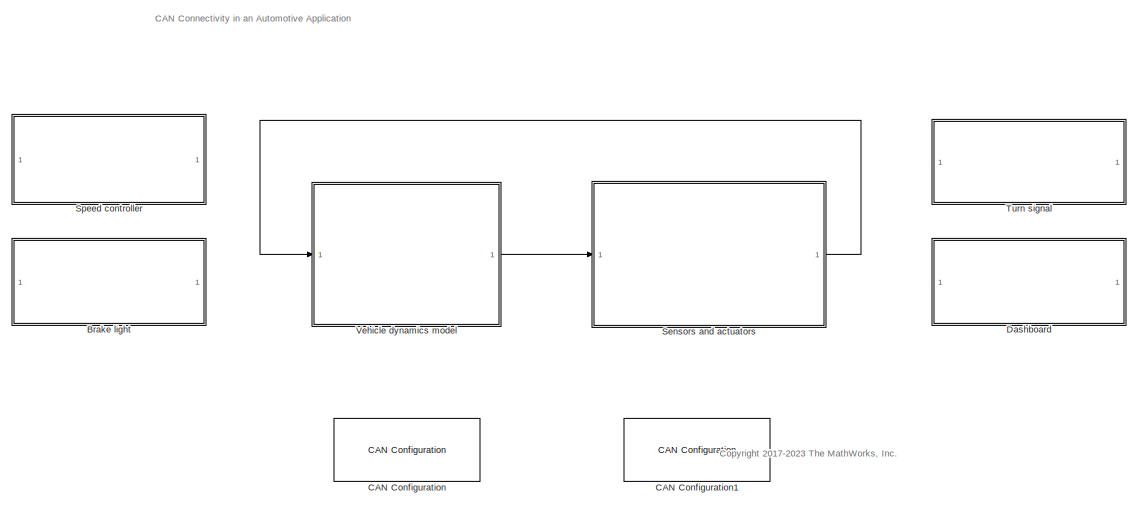
[diagram: root canvas - part 1/2, full width, top band]
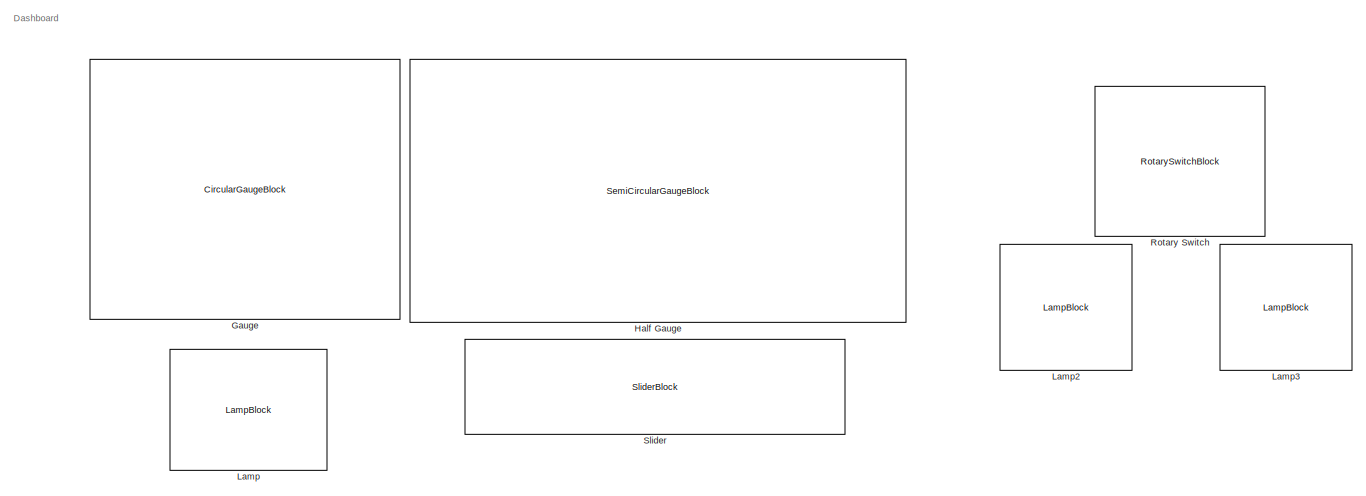
[diagram: root canvas - part 2/2, full width, bottom band]
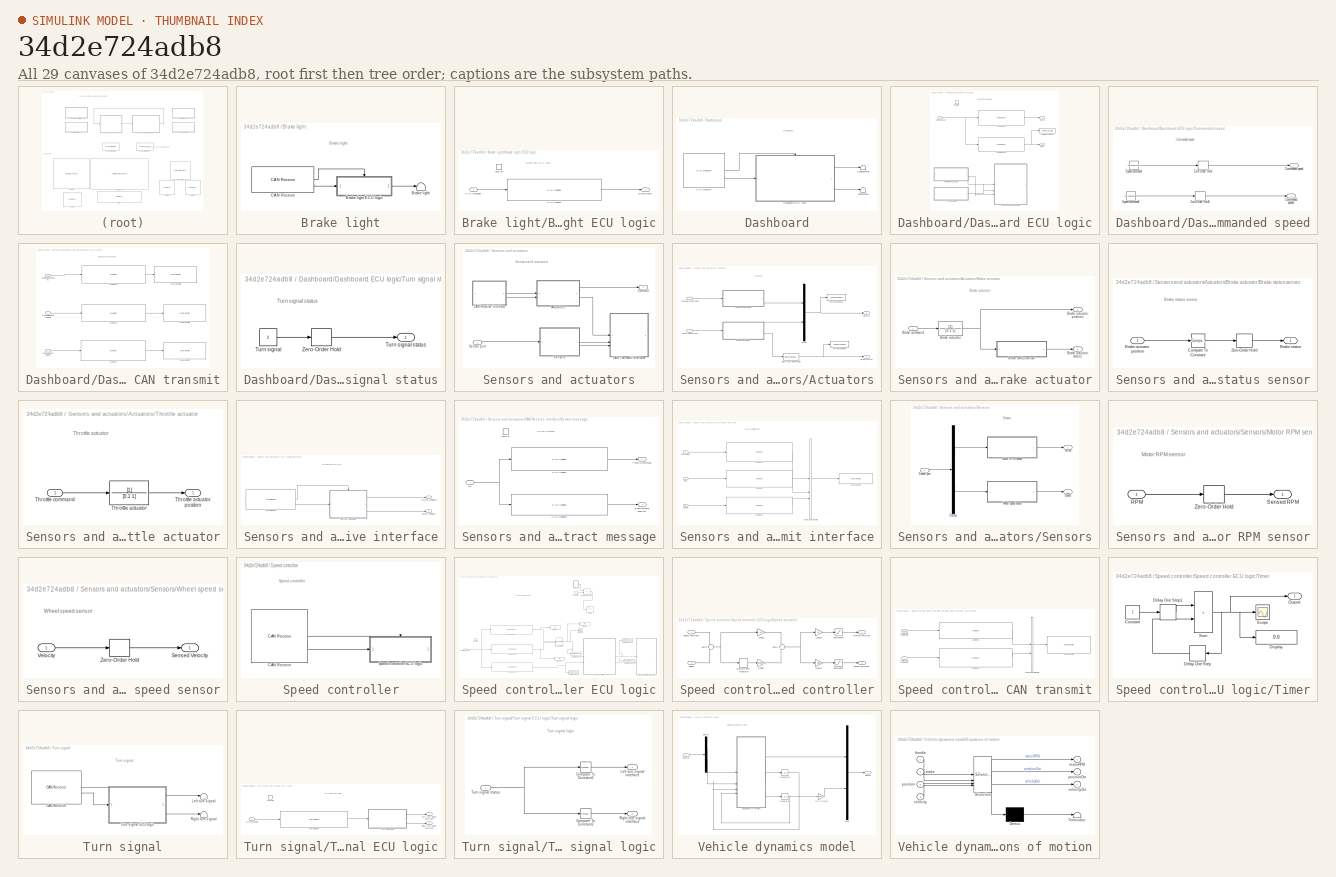
[diagram: thumbnail index - all 29 canvases of the model, root first then tree order]
MODEL slx_34d2e724adb8
KIND model
CONFIG AbsTol = auto
CONFIG EnableMultiTasking = off
CONFIG FixedStep = auto
CONFIG MaxStep = auto
CONFIG MinStep = auto
CONFIG RelTol = 1e-3
CONFIG SampleTimeConstraint = Unconstrained
CONFIG SolverName = VariableStepAuto
CONFIG StartTime = 0.0
CONFIG StopTime = inf
BLOCK [SubSystem] Brake light
BLOCK [Terminator] Brake light/Brake light
BLOCK [SubSystem] Brake light/Brake light ECU logic
  TreatAsAtomicUnit = on
BLOCK [Outport] Brake light/Brake light ECU logic/Brake status
  VectorParamsAs1DForOutWhenUnconnected = off
BLOCK [Reference] Brake light/Brake light ECU logic/CAN Unpack  REF=canmsglib/CAN Unpack
  SourceBlock = canmsglib/CAN Unpack
  SourceType = CAN Unpack
BLOCK [Inport] Brake light/Brake light ECU logic/CAN message
BLOCK [TriggerPort] Brake light/Brake light ECU logic/function
  StatesWhenEnabling = held
  TriggerType = function-call
  VariantControl = Variant
BLOCK [Reference] Brake light/CAN Receive  REF=canlib/CAN Receive
  SourceBlock = canlib/CAN Receive
  SourceType = CAN Receive
BLOCK [Reference] CAN Configuration  REF=canlib/CAN Configuration
  SourceBlock = canlib/CAN Configuration
  SourceType = CAN Configuration
BLOCK [Reference] CAN Configuration1  REF=canlib/CAN Configuration
  SourceBlock = canlib/CAN Configuration
  SourceType = CAN Configuration
BLOCK [SubSystem] Dashboard
BLOCK [Reference] Dashboard/CAN Receive  REF=canlib/CAN Receive
  SourceBlock = canlib/CAN Receive
  SourceType = CAN Receive
BLOCK [SubSystem] Dashboard/Dashboard ECU logic
  TreatAsAtomicUnit = on
BLOCK [Reference] Dashboard/Dashboard ECU logic/CAN Unpack  REF=canmsglib/CAN Unpack
  SourceBlock = canmsglib/CAN Unpack
  SourceType = CAN Unpack
BLOCK [Reference] Dashboard/Dashboard ECU logic/CAN Unpack1  REF=canmsglib/CAN Unpack
  SourceBlock = canmsglib/CAN Unpack
  SourceType = CAN Unpack
BLOCK [Inport] Dashboard/Dashboard ECU logic/CAN message
BLOCK [SubSystem] Dashboard/Dashboard ECU logic/Commanded speed
BLOCK [Outport] Dashboard/Dashboard ECU logic/Commanded speed/Commanded speed
  VectorParamsAs1DForOutWhenUnconnected = off
BLOCK [Outport] Dashboard/Dashboard ECU logic/Commanded speed/Commanded speed1
  Port = 2
  VectorParamsAs1DForOutWhenUnconnected = off
BLOCK [Constant] Dashboard/Dashboard ECU logic/Commanded speed/Speed command
  OutDataTypeStr = double
  SampleTime = Inf
  Value = 29.428571428571
BLOCK [Constant] Dashboard/Dashboard ECU logic/Commanded speed/Speed command1
  OutDataTypeStr = double
  SampleTime = Inf
  Value = 80.726487656
BLOCK [ZeroOrderHold] Dashboard/Dashboard ECU logic/Commanded speed/Zero-Order Hold
  SampleTime = -1
BLOCK [ZeroOrderHold] Dashboard/Dashboard ECU logic/Commanded speed/Zero-Order Hold1
  SampleTime = -1
BLOCK [SubSystem] Dashboard/Dashboard ECU logic/Dashboard CAN transmit
BLOCK [Reference] Dashboard/Dashboard ECU logic/Dashboard CAN transmit/CAN Pack  REF=canmsglib/CAN Pack
  SourceBlock = canmsglib/CAN Pack
  SourceType = CAN Pack
BLOCK [Reference] Dashboard/Dashboard ECU logic/Dashboard CAN transmit/CAN Pack1  REF=canmsglib/CAN Pack
  SourceBlock = canmsglib/CAN Pack
  SourceType = CAN Pack
BLOCK [Reference] Dashboard/Dashboard ECU logic/Dashboard CAN transmit/CAN Pack2  REF=canmsglib/CAN Pack
  SourceBlock = canmsglib/CAN Pack
  SourceType = CAN Pack
BLOCK [Reference] Dashboard/Dashboard ECU logic/Dashboard CAN transmit/CAN Transmit  REF=canlib/CAN Transmit
  SourceBlock = canlib/CAN Transmit
  SourceType = CAN Transmit
BLOCK [Reference] Dashboard/Dashboard ECU logic/Dashboard CAN transmit/CAN Transmit1  REF=canlib/CAN Transmit
  SourceBlock = canlib/CAN Transmit
  SourceType = CAN Transmit
BLOCK [Reference] Dashboard/Dashboard ECU logic/Dashboard CAN transmit/CAN Transmit2  REF=canlib/CAN Transmit
  SourceBlock = canlib/CAN Transmit
  SourceType = CAN Transmit
BLOCK [Inport] Dashboard/Dashboard ECU logic/Dashboard CAN transmit/CAN commanded speed tx
BLOCK [Inport] Dashboard/Dashboard ECU logic/Dashboard CAN transmit/CAN injected speed tx1
  Port = 3
BLOCK [Inport] Dashboard/Dashboard ECU logic/Dashboard CAN transmit/CAN turn signal status tx
  NameLocation = top
  Port = 2
BLOCK [Outport] Dashboard/Dashboard ECU logic/RPM
  Port = 2
  VectorParamsAs1DForOutWhenUnconnected = off
BLOCK [Outport] Dashboard/Dashboard ECU logic/Speed
  VectorParamsAs1DForOutWhenUnconnected = off
BLOCK [ToWorkspace] Dashboard/Dashboard ECU logic/To Workspace1
  FixptAsFi = on
  MaxDataPoints = inf
  SampleTime = -1
  SaveFormat = Timeseries
  VariableName = RPM
BLOCK [SubSystem] Dashboard/Dashboard ECU logic/Turn signal status
BLOCK [Constant] Dashboard/Dashboard ECU logic/Turn signal status/Turn signal
  OutDataTypeStr = double
  Value = 2
BLOCK [Outport] Dashboard/Dashboard ECU logic/Turn signal status/Turn signal status
  VectorParamsAs1DForOutWhenUnconnected = off
BLOCK [ZeroOrderHold] Dashboard/Dashboard ECU logic/Turn signal status/Zero-Order Hold
  SampleTime = -1
BLOCK [TriggerPort] Dashboard/Dashboard ECU logic/function
  StatesWhenEnabling = held
  TriggerType = function-call
  VariantControl = Variant
BLOCK [Terminator] Dashboard/Speedometer
BLOCK [Terminator] Dashboard/Tachometer
BLOCK [CircularGaugeBlock] Gauge
  TickInterval = 10
BLOCK [SemiCircularGaugeBlock] Half Gauge
  ScaleMax = 9000
  TickInterval = 1000
BLOCK [LampBlock] Lamp
BLOCK [LampBlock] Lamp2
BLOCK [LampBlock] Lamp3
BLOCK [RotarySwitchBlock] Rotary Switch
BLOCK [SubSystem] Sensors and actuators
BLOCK [SubSystem] Sensors and actuators/Actuators
BLOCK [SubSystem] Sensors and actuators/Actuators/Brake actuator
BLOCK [TransferFcn] Sensors and actuators/Actuators/Brake actuator/Brake actuator
  Denominator = [0.1 1]
BLOCK [Outport] Sensors and actuators/Actuators/Brake actuator/Brake actuator position
  VectorParamsAs1DForOutWhenUnconnected = off
BLOCK [Outport] Sensors and actuators/Actuators/Brake actuator/Brake actuator status
  Port = 2
  VectorParamsAs1DForOutWhenUnconnected = off
BLOCK [Inport] Sensors and actuators/Actuators/Brake actuator/Brake command
BLOCK [SubSystem] Sensors and actuators/Actuators/Brake actuator/Brake status sensor
BLOCK [Inport] Sensors and actuators/Actuators/Brake actuator/Brake status sensor/Brake actuator position
BLOCK [Outport] Sensors and actuators/Actuators/Brake actuator/Brake status sensor/Brake status
  VectorParamsAs1DForOutWhenUnconnected = off
BLOCK [Reference] Sensors and actuators/Actuators/Brake actuator/Brake status sensor/Compare To Constant  REF=simulink/Logic and Bit
Operations/Compare
To Constant
  SourceBlock = simulink/Logic and Bit\nOperations/Compare\nTo Constant
  SourceType = Compare To Constant
BLOCK [ZeroOrderHold] Sensors and actuators/Actuators/Brake actuator/Brake status sensor/Zero-Order Hold
  SampleTime = 0.01
BLOCK [Inport] Sensors and actuators/Actuators/Brake command
  Port = 2
BLOCK [Outport] Sensors and actuators/Actuators/Brake status
  Port = 2
  VectorParamsAs1DForOutWhenUnconnected = off
BLOCK [Outport] Sensors and actuators/Actuators/Control
  VectorParamsAs1DForOutWhenUnconnected = off
BLOCK [DataTypeConversion] Sensors and actuators/Actuators/Data Type Conversion
  OutDataTypeStr = double
  RndMeth = Floor
  SaturateOnIntegerOverflow = off
BLOCK [Mux] Sensors and actuators/Actuators/Mux1
  DisplayOption = bar
  Inputs = 2
BLOCK [SubSystem] Sensors and actuators/Actuators/Throttle actuator
BLOCK [TransferFcn] Sensors and actuators/Actuators/Throttle actuator/Throttle actuator
  Denominator = [0.1 1]
BLOCK [Outport] Sensors and actuators/Actuators/Throttle actuator/Throttle actuator position
  VectorParamsAs1DForOutWhenUnconnected = off
BLOCK [Inport] Sensors and actuators/Actuators/Throttle actuator/Throttle command
BLOCK [Inport] Sensors and actuators/Actuators/Throttle command
BLOCK [ToWorkspace] Sensors and actuators/Actuators/To Workspace
  FixptAsFi = on
  MaxDataPoints = inf
  SampleTime = -1
  SaveFormat = Timeseries
  VariableName = Brake_Status
BLOCK [ToWorkspace] Sensors and actuators/Actuators/To Workspace1
  FixptAsFi = on
  MaxDataPoints = inf
  SampleTime = -1
  SaveFormat = Timeseries
  VariableName = Actuator_Pos
BLOCK [SubSystem] Sensors and actuators/CAN Receive interface
BLOCK [Outport] Sensors and actuators/CAN Receive interface/Brake command
  Port = 2
  VectorParamsAs1DForOutWhenUnconnected = off
BLOCK [Reference] Sensors and actuators/CAN Receive interface/CAN Receive  REF=canlib/CAN Receive
  SourceBlock = canlib/CAN Receive
  SourceType = CAN Receive
BLOCK [SubSystem] Sensors and actuators/CAN Receive interface/Extract message
  TreatAsAtomicUnit = on
BLOCK [Outport] Sensors and actuators/CAN Receive interface/Extract message/Brake actuator position
  Port = 2
  VectorParamsAs1DForOutWhenUnconnected = off
BLOCK [Reference] Sensors and actuators/CAN Receive interface/Extract message/CAN Unpack  REF=canmsglib/CAN Unpack
  SourceBlock = canmsglib/CAN Unpack
  SourceType = CAN Unpack
BLOCK [Reference] Sensors and actuators/CAN Receive interface/Extract message/CAN Unpack1  REF=canmsglib/CAN Unpack
  SourceBlock = canmsglib/CAN Unpack
  SourceType = CAN Unpack
BLOCK [Inport] Sensors and actuators/CAN Receive interface/Extract message/In1
BLOCK [Outport] Sensors and actuators/CAN Receive interface/Extract message/Throttle command
  VectorParamsAs1DForOutWhenUnconnected = off
BLOCK [TriggerPort] Sensors and actuators/CAN Receive interface/Extract message/function
  StatesWhenEnabling = held
  TriggerType = function-call
  VariantControl = Variant
BLOCK [Outport] Sensors and actuators/CAN Receive interface/Throttle command
  VectorParamsAs1DForOutWhenUnconnected = off
BLOCK [SubSystem] Sensors and actuators/CAN Transmit interface
BLOCK [Inport] Sensors and actuators/CAN Transmit interface/Brake status
BLOCK [Reference] Sensors and actuators/CAN Transmit interface/CAN Pack  REF=canmsglib/CAN Pack
  NameLocation = top
  SourceBlock = canmsglib/CAN Pack
  SourceType = CAN Pack
BLOCK [Reference] Sensors and actuators/CAN Transmit interface/CAN Pack1  REF=canmsglib/CAN Pack
  NameLocation = top
  SourceBlock = canmsglib/CAN Pack
  SourceType = CAN Pack
BLOCK [Reference] Sensors and actuators/CAN Transmit interface/CAN Pack2  REF=canmsglib/CAN Pack
  NameLocation = top
  SourceBlock = canmsglib/CAN Pack
  SourceType = CAN Pack
BLOCK [Reference] Sensors and actuators/CAN Transmit interface/CAN Transmit  REF=canlib/CAN Transmit
  SourceBlock = canlib/CAN Transmit
  SourceType = CAN Transmit
BLOCK [Inport] Sensors and actuators/CAN Transmit interface/RPM
  Port = 2
BLOCK [Inport] Sensors and actuators/CAN Transmit interface/Speed
  Port = 3
BLOCK [Concatenate] Sensors and actuators/CAN Transmit interface/Vector Concatenate
  NumInputs = 3
BLOCK [Outport] Sensors and actuators/Control
  VectorParamsAs1DForOutWhenUnconnected = off
BLOCK [Inport] Sensors and actuators/Sensor port
BLOCK [SubSystem] Sensors and actuators/Sensors
BLOCK [Demux] Sensors and actuators/Sensors/Demux
  Outputs = 2
BLOCK [SubSystem] Sensors and actuators/Sensors/Motor RPM sensor
BLOCK [Inport] Sensors and actuators/Sensors/Motor RPM sensor/RPM
BLOCK [Outport] Sensors and actuators/Sensors/Motor RPM sensor/Sensed RPM
  VectorParamsAs1DForOutWhenUnconnected = off
BLOCK [ZeroOrderHold] Sensors and actuators/Sensors/Motor RPM sensor/Zero-Order Hold
  SampleTime = .01
BLOCK [Outport] Sensors and actuators/Sensors/RPM
  VectorParamsAs1DForOutWhenUnconnected = off
BLOCK [Inport] Sensors and actuators/Sensors/Sensor port
BLOCK [Outport] Sensors and actuators/Sensors/Speed
  Port = 2
  VectorParamsAs1DForOutWhenUnconnected = off
BLOCK [SubSystem] Sensors and actuators/Sensors/Wheel speed sensor
BLOCK [Outport] Sensors and actuators/Sensors/Wheel speed sensor/Sensed Velocity
  VectorParamsAs1DForOutWhenUnconnected = off
BLOCK [Inport] Sensors and actuators/Sensors/Wheel speed sensor/Velocity
BLOCK [ZeroOrderHold] Sensors and actuators/Sensors/Wheel speed sensor/Zero-Order Hold
  SampleTime = .01
BLOCK [SliderBlock] Slider
BLOCK [SubSystem] Speed controller
BLOCK [Reference] Speed controller/CAN Receive  REF=canlib/CAN Receive
  SourceBlock = canlib/CAN Receive
  SourceType = CAN Receive
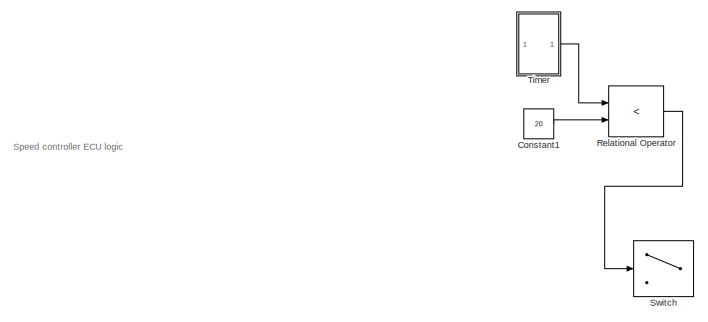
[diagram: Speed controller/Speed controller ECU logic - part 1/3, top center region]
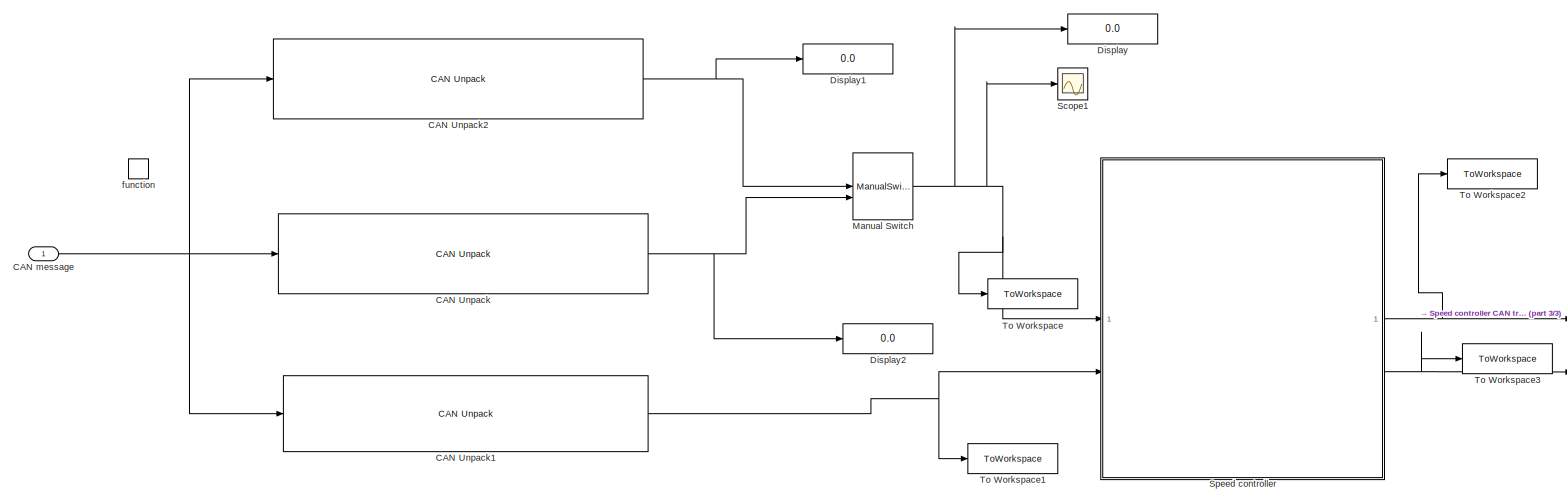
[diagram: Speed controller/Speed controller ECU logic - part 2/3, full width, bottom band]
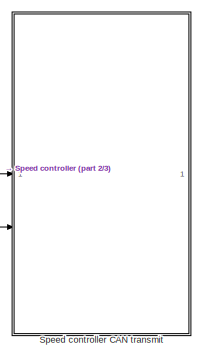
[diagram: Speed controller/Speed controller ECU logic - part 3/3, bottom right region]
BLOCK [SubSystem] Speed controller/Speed controller ECU logic
  TreatAsAtomicUnit = on
BLOCK [Reference] Speed controller/Speed controller ECU logic/CAN Unpack  REF=canmsglib/CAN Unpack
  SourceBlock = canmsglib/CAN Unpack
  SourceType = CAN Unpack
BLOCK [Reference] Speed controller/Speed controller ECU logic/CAN Unpack1  REF=canmsglib/CAN Unpack
  SourceBlock = canmsglib/CAN Unpack
  SourceType = CAN Unpack
BLOCK [Reference] Speed controller/Speed controller ECU logic/CAN Unpack2  REF=canmsglib/CAN Unpack
  SourceBlock = canmsglib/CAN Unpack
  SourceType = CAN Unpack
BLOCK [Inport] Speed controller/Speed controller ECU logic/CAN message
BLOCK [Constant] Speed controller/Speed controller ECU logic/Constant1
  Commented = on
  Value = 20
BLOCK [Display] Speed controller/Speed controller ECU logic/Display
  Decimation = 1
BLOCK [Display] Speed controller/Speed controller ECU logic/Display1
  Decimation = 1
BLOCK [Display] Speed controller/Speed controller ECU logic/Display2
  Decimation = 1
BLOCK [ManualSwitch] Speed controller/Speed controller ECU logic/Manual Switch
  CurrentSetting = 0
BLOCK [RelationalOperator] Speed controller/Speed controller ECU logic/Relational Operator
  Commented = on
  InputSameDT = off
  Operator = <
  OutDataTypeStr = boolean
  RndMeth = Simplest
BLOCK [Scope] Speed controller/Speed controller ECU logic/Scope1
  Floating = off
  NumInputPorts = 1
  ScopeSpecificationString = Simulink.scopes.TimeScopeBlockCfg('CurrentConfiguration', extmgr.ConfigurationSet(extmgr.Configuration('Core','General UI',true),extmgr.Configuration('Core','Source UI',true),extmgr.Configuration('Sources','WiredSimulink',true,'DataLoggingVariableName','ScopeData1'),extmgr.Configuration('Visuals','Time Domain',true,'SerializedDisplays',{struct('MinYLimReal','0.04585','MaxYLimReal','0.0466','YLabel...<+1517ch>
BLOCK [SubSystem] Speed controller/Speed controller ECU logic/Speed controller
BLOCK [SubSystem] Speed controller/Speed controller ECU logic/Speed controller CAN transmit
BLOCK [Reference] Speed controller/Speed controller ECU logic/Speed controller CAN transmit/CAN Pack  REF=canmsglib/CAN Pack
  NameLocation = top
  SourceBlock = canmsglib/CAN Pack
  SourceType = CAN Pack
BLOCK [Reference] Speed controller/Speed controller ECU logic/Speed controller CAN transmit/CAN Pack1  REF=canmsglib/CAN Pack
  NameLocation = top
  SourceBlock = canmsglib/CAN Pack
  SourceType = CAN Pack
BLOCK [Reference] Speed controller/Speed controller ECU logic/Speed controller CAN transmit/CAN Transmit  REF=canlib/CAN Transmit
  SourceBlock = canlib/CAN Transmit
  SourceType = CAN Transmit
BLOCK [Inport] Speed controller/Speed controller ECU logic/Speed controller CAN transmit/CAN brake command tx
  Port = 2
BLOCK [Inport] Speed controller/Speed controller ECU logic/Speed controller CAN transmit/CAN throttle command tx
BLOCK [Concatenate] Speed controller/Speed controller ECU logic/Speed controller CAN transmit/Vector Concatenate
BLOCK [Outport] Speed controller/Speed controller ECU logic/Speed controller/Brake command
  Port = 2
  VectorParamsAs1DForOutWhenUnconnected = off
BLOCK [DiscreteIntegrator] Speed controller/Speed controller ECU logic/Speed controller/Discrete-Time Integrator
  ICPrevOutput = DiscIntNeverNeededParam
  ICPrevScaledInput = DiscIntNeverNeededParam
  IntegratorMethod = Accumulation: Forward Euler
  SampleTime = -1
BLOCK [Gain] Speed controller/Speed controller ECU logic/Speed controller/Gain10
  Gain = 0.8
BLOCK [Gain] Speed controller/Speed controller ECU logic/Speed controller/Gain12
  Gain = 0.000004
BLOCK [Gain] Speed controller/Speed controller ECU logic/Speed controller/Gain13
  Gain = 0.4
BLOCK [Gain] Speed controller/Speed controller ECU logic/Speed controller/Gain14
  Gain = -0.05
BLOCK [Saturate] Speed controller/Speed controller ECU logic/Speed controller/Saturation6
  LowerLimit = 0
  UpperLimit = 1
BLOCK [Saturate] Speed controller/Speed controller ECU logic/Speed controller/Saturation7
  LowerLimit = 0
  UpperLimit = 1
BLOCK [Inport] Speed controller/Speed controller ECU logic/Speed controller/Speed
  Port = 2
BLOCK [Inport] Speed controller/Speed controller ECU logic/Speed controller/Speed command
BLOCK [Sum] Speed controller/Speed controller ECU logic/Speed controller/Sum3
  Inputs = +|-
BLOCK [Sum] Speed controller/Speed controller ECU logic/Speed controller/Sum4
  Inputs = +|+
BLOCK [Outport] Speed controller/Speed controller ECU logic/Speed controller/Throttle command
  VectorParamsAs1DForOutWhenUnconnected = off
BLOCK [Switch] Speed controller/Speed controller ECU logic/Switch
  Commented = on
  Criteria = u2 > Threshold
  InputSameDT = off
  SaturateOnIntegerOverflow = off
BLOCK [SubSystem] Speed controller/Speed controller ECU logic/Timer
  Commented = on
BLOCK [Constant] Speed controller/Speed controller ECU logic/Timer/Constant
BLOCK [Delay] Speed controller/Speed controller ECU logic/Timer/Delay One Step
  DelayLength = 1
  InputPortMap = u0
  NameLocation = top
BLOCK [Delay] Speed controller/Speed controller ECU logic/Timer/Delay One Step1
  DelayLength = 1
  InputPortMap = u0
BLOCK [Display] Speed controller/Speed controller ECU logic/Timer/Display
  Decimation = 1
BLOCK [Outport] Speed controller/Speed controller ECU logic/Timer/Outport
BLOCK [Scope] Speed controller/Speed controller ECU logic/Timer/Scope
  Floating = off
  NumInputPorts = 1
  ScopeSpecificationString = Simulink.scopes.TimeScopeBlockCfg('CurrentConfiguration', extmgr.ConfigurationSet(extmgr.Configuration('Core','General UI',true),extmgr.Configuration('Core','Source UI',true),extmgr.Configuration('Sources','WiredSimulink',true),extmgr.Configuration('Visuals','Time Domain',true,'SerializedDisplays',{struct('MinYLimReal','-2.5','MaxYLimReal','22.5','YLabelReal','','MinYLimMag','0.00000','MaxYLimMag'...<+1392ch>
BLOCK [Sum] Speed controller/Speed controller ECU logic/Timer/Sum
  IconShape = rectangular
  Inputs = |++
BLOCK [ToWorkspace] Speed controller/Speed controller ECU logic/To Workspace
  FixptAsFi = on
  MaxDataPoints = inf
  SampleTime = -1
  SaveFormat = Timeseries
  VariableName = speed_command
BLOCK [ToWorkspace] Speed controller/Speed controller ECU logic/To Workspace1
  FixptAsFi = on
  MaxDataPoints = inf
  SampleTime = -1
  SaveFormat = Timeseries
  VariableName = speed
BLOCK [ToWorkspace] Speed controller/Speed controller ECU logic/To Workspace2
  FixptAsFi = on
  MaxDataPoints = inf
  SampleTime = -1
  SaveFormat = Timeseries
  VariableName = Throttle_com
BLOCK [ToWorkspace] Speed controller/Speed controller ECU logic/To Workspace3
  FixptAsFi = on
  MaxDataPoints = inf
  SampleTime = -1
  SaveFormat = Timeseries
  VariableName = Brake_com
BLOCK [TriggerPort] Speed controller/Speed controller ECU logic/function
  StatesWhenEnabling = held
  TriggerType = function-call
  VariantControl = Variant
BLOCK [SubSystem] Turn signal
BLOCK [Reference] Turn signal/CAN Receive  REF=canlib/CAN Receive
  SourceBlock = canlib/CAN Receive
  SourceType = CAN Receive
BLOCK [Terminator] Turn signal/Left turn signal
BLOCK [Terminator] Turn signal/Right turn signal
BLOCK [SubSystem] Turn signal/Turn signal ECU logic
  TreatAsAtomicUnit = on
BLOCK [Reference] Turn signal/Turn signal ECU logic/CAN Unpack  REF=canmsglib/CAN Unpack
  SourceBlock = canmsglib/CAN Unpack
  SourceType = CAN Unpack
BLOCK [Inport] Turn signal/Turn signal ECU logic/CAN message
BLOCK [Outport] Turn signal/Turn signal ECU logic/Left turn signal interface
  VectorParamsAs1DForOutWhenUnconnected = off
BLOCK [Outport] Turn signal/Turn signal ECU logic/Right turn signal interface
  Port = 2
  VectorParamsAs1DForOutWhenUnconnected = off
BLOCK [SubSystem] Turn signal/Turn signal ECU logic/Turn signal logic
BLOCK [Reference] Turn signal/Turn signal ECU logic/Turn signal logic/Compare To Constant1  REF=simulink/Logic and Bit
Operations/Compare
To Constant
  SourceBlock = simulink/Logic and Bit\nOperations/Compare\nTo Constant
  SourceType = Compare To Constant
BLOCK [Reference] Turn signal/Turn signal ECU logic/Turn signal logic/Compare To Constant2  REF=simulink/Logic and Bit
Operations/Compare
To Constant
  SourceBlock = simulink/Logic and Bit\nOperations/Compare\nTo Constant
  SourceType = Compare To Constant
BLOCK [Outport] Turn signal/Turn signal ECU logic/Turn signal logic/Left turn signal interface
  VectorParamsAs1DForOutWhenUnconnected = off
BLOCK [Outport] Turn signal/Turn signal ECU logic/Turn signal logic/Right turn signal interface
  Port = 2
  VectorParamsAs1DForOutWhenUnconnected = off
BLOCK [Inport] Turn signal/Turn signal ECU logic/Turn signal logic/Turn signal status
BLOCK [TriggerPort] Turn signal/Turn signal ECU logic/function
  StatesWhenEnabling = held
  TriggerType = function-call
  VariantControl = Variant
BLOCK [SubSystem] Vehicle dynamics model
BLOCK [Inport] Vehicle dynamics model/Control
BLOCK [Demux] Vehicle dynamics model/Demux
  Outputs = 2
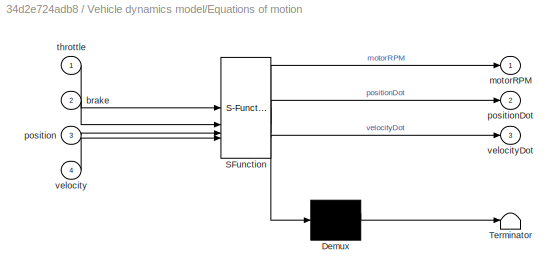
BLOCK [SubSystem] Vehicle dynamics model/Equations of motion
  ErrorFcn = Stateflow.Translate.translate
  PermitHierarchicalResolution = ExplicitOnly
  SFBlockType = MATLAB Function
  TreatAsAtomicUnit = on
BLOCK [Demux] Vehicle dynamics model/Equations of motion/ Demux 
  Outputs = 1
BLOCK [S-Function] Vehicle dynamics model/Equations of motion/ SFunction 
  EnableBusSupport = on
  FunctionName = sf_sfun
  PortCounts = [4 4]
  SFcnIsStateOwnerBlock = off
  SFunctionDeploymentMode = off
  Tag = Stateflow S-Function 2
BLOCK [Terminator] Vehicle dynamics model/Equations of motion/ Terminator 
BLOCK [Inport] Vehicle dynamics model/Equations of motion/brake
  Port = 2
BLOCK [Outport] Vehicle dynamics model/Equations of motion/motorRPM
  VectorParamsAs1DForOutWhenUnconnected = off
BLOCK [Inport] Vehicle dynamics model/Equations of motion/position
  Port = 3
BLOCK [Outport] Vehicle dynamics model/Equations of motion/positionDot
  Port = 2
  VectorParamsAs1DForOutWhenUnconnected = off
BLOCK [Inport] Vehicle dynamics model/Equations of motion/throttle
BLOCK [Inport] Vehicle dynamics model/Equations of motion/velocity
  Port = 4
BLOCK [Outport] Vehicle dynamics model/Equations of motion/velocityDot
  Port = 3
  VectorParamsAs1DForOutWhenUnconnected = off
BLOCK [Integrator] Vehicle dynamics model/Integrator1
BLOCK [Integrator] Vehicle dynamics model/Integrator2
BLOCK [Mux] Vehicle dynamics model/Mux
  DisplayOption = bar
  Inputs = 2
BLOCK [Outport] Vehicle dynamics model/Sensor
  VectorParamsAs1DForOutWhenUnconnected = off
BLOCK [Gain] Vehicle dynamics model/m//s to mph
  Gain = (3600/1000)/1.6
ANNOTATION (root): <copyright redacted>
ANNOTATION (root): CAN Connectivity in an Automotive Application
ANNOTATION (root): Dashboard
ANNOTATION Brake light: Brake light
ANNOTATION Brake light/Brake light ECU logic: Brake light ECU logic
ANNOTATION Dashboard: Dashboard
ANNOTATION Dashboard/Dashboard ECU logic: Dashboard ECU logic
ANNOTATION Dashboard/Dashboard ECU logic/Commanded speed: Commanded speed
ANNOTATION Dashboard/Dashboard ECU logic/Dashboard CAN transmit: Dashboard CAN transmit
ANNOTATION Dashboard/Dashboard ECU logic/Turn signal status: Turn signal status
ANNOTATION Sensors and actuators: Sensors and actuators
ANNOTATION Sensors and actuators/Actuators: Actuators
ANNOTATION Sensors and actuators/Actuators/Brake actuator: Brake actuator
ANNOTATION Sensors and actuators/Actuators/Brake actuator/Brake status sensor: Brake status sensor
ANNOTATION Sensors and actuators/Actuators/Throttle actuator: Throttle actuator
ANNOTATION Sensors and actuators/CAN Receive interface: CAN Receive interface
ANNOTATION Sensors and actuators/CAN Receive interface/Extract message: Extract message
ANNOTATION Sensors and actuators/CAN Transmit interface: CAN Transmit interface
ANNOTATION Sensors and actuators/Sensors: Sensors
ANNOTATION Sensors and actuators/Sensors/Motor RPM sensor: Motor RPM sensor
ANNOTATION Sensors and actuators/Sensors/Wheel speed sensor: Wheel speed sensor
ANNOTATION Speed controller: Speed controller
ANNOTATION Speed controller/Speed controller ECU logic: Speed controller ECU logic
ANNOTATION Turn signal: Turn signal
ANNOTATION Turn signal/Turn signal ECU logic: Turn signal ECU logic
ANNOTATION Turn signal/Turn signal ECU logic/Turn signal logic: Turn signal logic
ANNOTATION Vehicle dynamics model: Vehicle dynamics model
LINE Brake light/Brake light ECU logic/CAN Unpack:1 -> Brake light/Brake light ECU logic/Brake status:1
LINE Brake light/Brake light ECU logic/CAN message:1 -> Brake light/Brake light ECU logic/CAN Unpack:1
LINE Brake light/Brake light ECU logic:1 -> Brake light/Brake light:1
LINE Brake light/CAN Receive:1 -> Brake light/Brake light ECU logic:trigger
LINE Brake light/CAN Receive:2 -> Brake light/Brake light ECU logic:1
LINE Dashboard/CAN Receive:1 -> Dashboard/Dashboard ECU logic:trigger
LINE Dashboard/CAN Receive:2 -> Dashboard/Dashboard ECU logic:1
NET Dashboard/Dashboard ECU logic/CAN Unpack1:1 -> Dashboard/Dashboard ECU logic/RPM:1, Dashboard/Dashboard ECU logic/To Workspace1:1
LINE Dashboard/Dashboard ECU logic/CAN Unpack:1 -> Dashboard/Dashboard ECU logic/Speed:1
NET Dashboard/Dashboard ECU logic/CAN message:1 -> Dashboard/Dashboard ECU logic/CAN Unpack1:1, Dashboard/Dashboard ECU logic/CAN Unpack:1
LINE Dashboard/Dashboard ECU logic/Commanded speed/Speed command1:1 -> Dashboard/Dashboard ECU logic/Commanded speed/Zero-Order Hold1:1
LINE Dashboard/Dashboard ECU logic/Commanded speed/Speed command:1 -> Dashboard/Dashboard ECU logic/Commanded speed/Zero-Order Hold:1
LINE Dashboard/Dashboard ECU logic/Commanded speed/Zero-Order Hold1:1 -> Dashboard/Dashboard ECU logic/Commanded speed/Commanded speed1:1
LINE Dashboard/Dashboard ECU logic/Commanded speed/Zero-Order Hold:1 -> Dashboard/Dashboard ECU logic/Commanded speed/Commanded speed:1
LINE Dashboard/Dashboard ECU logic/Commanded speed:1 -> Dashboard/Dashboard ECU logic/Dashboard CAN transmit:1
LINE Dashboard/Dashboard ECU logic/Commanded speed:2 -> Dashboard/Dashboard ECU logic/Dashboard CAN transmit:3
LINE Dashboard/Dashboard ECU logic/Dashboard CAN transmit/CAN Pack1:1 -> Dashboard/Dashboard ECU logic/Dashboard CAN transmit/CAN Transmit1:1
LINE Dashboard/Dashboard ECU logic/Dashboard CAN transmit/CAN Pack2:1 -> Dashboard/Dashboard ECU logic/Dashboard CAN transmit/CAN Transmit2:1
LINE Dashboard/Dashboard ECU logic/Dashboard CAN transmit/CAN Pack:1 -> Dashboard/Dashboard ECU logic/Dashboard CAN transmit/CAN Transmit:1
LINE Dashboard/Dashboard ECU logic/Dashboard CAN transmit/CAN commanded speed tx:1 -> Dashboard/Dashboard ECU logic/Dashboard CAN transmit/CAN Pack1:1
LINE Dashboard/Dashboard ECU logic/Dashboard CAN transmit/CAN injected speed tx1:1 -> Dashboard/Dashboard ECU logic/Dashboard CAN transmit/CAN Pack2:1
LINE Dashboard/Dashboard ECU logic/Dashboard CAN transmit/CAN turn signal status tx:1 -> Dashboard/Dashboard ECU logic/Dashboard CAN transmit/CAN Pack:1
LINE Dashboard/Dashboard ECU logic/Turn signal status/Turn signal:1 -> Dashboard/Dashboard ECU logic/Turn signal status/Zero-Order Hold:1
LINE Dashboard/Dashboard ECU logic/Turn signal status/Zero-Order Hold:1 -> Dashboard/Dashboard ECU logic/Turn signal status/Turn signal status:1
LINE Dashboard/Dashboard ECU logic/Turn signal status:1 -> Dashboard/Dashboard ECU logic/Dashboard CAN transmit:2
LINE Dashboard/Dashboard ECU logic:1 -> Dashboard/Speedometer:1
LINE Dashboard/Dashboard ECU logic:2 -> Dashboard/Tachometer:1
NET Sensors and actuators/Actuators/Brake actuator/Brake actuator:1 -> Sensors and actuators/Actuators/Brake actuator/Brake actuator position:1, Sensors and actuators/Actuators/Brake actuator/Brake status sensor:1
LINE Sensors and actuators/Actuators/Brake actuator/Brake command:1 -> Sensors and actuators/Actuators/Brake actuator/Brake actuator:1
LINE Sensors and actuators/Actuators/Brake actuator/Brake status sensor/Brake actuator position:1 -> Sensors and actuators/Actuators/Brake actuator/Brake status sensor/Compare To Constant:1
LINE Sensors and actuators/Actuators/Brake actuator/Brake status sensor/Compare To Constant:1 -> Sensors and actuators/Actuators/Brake actuator/Brake status sensor/Zero-Order Hold:1
LINE Sensors and actuators/Actuators/Brake actuator/Brake status sensor/Zero-Order Hold:1 -> Sensors and actuators/Actuators/Brake actuator/Brake status sensor/Brake status:1
LINE Sensors and actuators/Actuators/Brake actuator/Brake status sensor:1 -> Sensors and actuators/Actuators/Brake actuator/Brake actuator status:1
LINE Sensors and actuators/Actuators/Brake actuator:1 -> Sensors and actuators/Actuators/Mux1:2
LINE Sensors and actuators/Actuators/Brake actuator:2 -> Sensors and actuators/Actuators/Data Type Conversion:1
LINE Sensors and actuators/Actuators/Brake command:1 -> Sensors and actuators/Actuators/Brake actuator:1
NET Sensors and actuators/Actuators/Data Type Conversion:1 -> Sensors and actuators/Actuators/Brake status:1, Sensors and actuators/Actuators/To Workspace:1
NET Sensors and actuators/Actuators/Mux1:1 -> Sensors and actuators/Actuators/Control:1, Sensors and actuators/Actuators/To Workspace1:1
LINE Sensors and actuators/Actuators/Throttle actuator/Throttle actuator:1 -> Sensors and actuators/Actuators/Throttle actuator/Throttle actuator position:1
LINE Sensors and actuators/Actuators/Throttle actuator/Throttle command:1 -> Sensors and actuators/Actuators/Throttle actuator/Throttle actuator:1
LINE Sensors and actuators/Actuators/Throttle actuator:1 -> Sensors and actuators/Actuators/Mux1:1
LINE Sensors and actuators/Actuators/Throttle command:1 -> Sensors and actuators/Actuators/Throttle actuator:1
LINE Sensors and actuators/Actuators:1 -> Sensors and actuators/Control:1
LINE Sensors and actuators/Actuators:2 -> Sensors and actuators/CAN Transmit interface:1
LINE Sensors and actuators/CAN Receive interface/CAN Receive:1 -> Sensors and actuators/CAN Receive interface/Extract message:trigger
LINE Sensors and actuators/CAN Receive interface/CAN Receive:2 -> Sensors and actuators/CAN Receive interface/Extract message:1
LINE Sensors and actuators/CAN Receive interface/Extract message/CAN Unpack1:1 -> Sensors and actuators/CAN Receive interface/Extract message/Brake actuator position:1
LINE Sensors and actuators/CAN Receive interface/Extract message/CAN Unpack:1 -> Sensors and actuators/CAN Receive interface/Extract message/Throttle command:1
NET Sensors and actuators/CAN Receive interface/Extract message/In1:1 -> Sensors and actuators/CAN Receive interface/Extract message/CAN Unpack1:1, Sensors and actuators/CAN Receive interface/Extract message/CAN Unpack:1
LINE Sensors and actuators/CAN Receive interface/Extract message:1 -> Sensors and actuators/CAN Receive interface/Throttle command:1
LINE Sensors and actuators/CAN Receive interface/Extract message:2 -> Sensors and actuators/CAN Receive interface/Brake command:1
LINE Sensors and actuators/CAN Receive interface:1 -> Sensors and actuators/Actuators:1
LINE Sensors and actuators/CAN Receive interface:2 -> Sensors and actuators/Actuators:2
LINE Sensors and actuators/CAN Transmit interface/Brake status:1 -> Sensors and actuators/CAN Transmit interface/CAN Pack2:1
LINE Sensors and actuators/CAN Transmit interface/CAN Pack1:1 -> Sensors and actuators/CAN Transmit interface/Vector Concatenate:3
LINE Sensors and actuators/CAN Transmit interface/CAN Pack2:1 -> Sensors and actuators/CAN Transmit interface/Vector Concatenate:1
LINE Sensors and actuators/CAN Transmit interface/CAN Pack:1 -> Sensors and actuators/CAN Transmit interface/Vector Concatenate:2
LINE Sensors and actuators/CAN Transmit interface/RPM:1 -> Sensors and actuators/CAN Transmit interface/CAN Pack:1
LINE Sensors and actuators/CAN Transmit interface/Speed:1 -> Sensors and actuators/CAN Transmit interface/CAN Pack1:1
LINE Sensors and actuators/CAN Transmit interface/Vector Concatenate:1 -> Sensors and actuators/CAN Transmit interface/CAN Transmit:1
LINE Sensors and actuators/Sensor port:1 -> Sensors and actuators/Sensors:1
LINE Sensors and actuators/Sensors/Demux:1 -> Sensors and actuators/Sensors/Motor RPM sensor:1
LINE Sensors and actuators/Sensors/Demux:2 -> Sensors and actuators/Sensors/Wheel speed sensor:1
LINE Sensors and actuators/Sensors/Motor RPM sensor/RPM:1 -> Sensors and actuators/Sensors/Motor RPM sensor/Zero-Order Hold:1
LINE Sensors and actuators/Sensors/Motor RPM sensor/Zero-Order Hold:1 -> Sensors and actuators/Sensors/Motor RPM sensor/Sensed RPM:1
LINE Sensors and actuators/Sensors/Motor RPM sensor:1 -> Sensors and actuators/Sensors/RPM:1
LINE Sensors and actuators/Sensors/Sensor port:1 -> Sensors and actuators/Sensors/Demux:1
LINE Sensors and actuators/Sensors/Wheel speed sensor/Velocity:1 -> Sensors and actuators/Sensors/Wheel speed sensor/Zero-Order Hold:1
LINE Sensors and actuators/Sensors/Wheel speed sensor/Zero-Order Hold:1 -> Sensors and actuators/Sensors/Wheel speed sensor/Sensed Velocity:1
LINE Sensors and actuators/Sensors/Wheel speed sensor:1 -> Sensors and actuators/Sensors/Speed:1
LINE Sensors and actuators/Sensors:1 -> Sensors and actuators/CAN Transmit interface:2
LINE Sensors and actuators/Sensors:2 -> Sensors and actuators/CAN Transmit interface:3
LINE Sensors and actuators:1 -> Vehicle dynamics model:1
LINE Speed controller/CAN Receive:1 -> Speed controller/Speed controller ECU logic:trigger
LINE Speed controller/CAN Receive:2 -> Speed controller/Speed controller ECU logic:1
NET Speed controller/Speed controller ECU logic/CAN Unpack1:1 -> Speed controller/Speed controller ECU logic/Speed controller:2, Speed controller/Speed controller ECU logic/To Workspace1:1
NET Speed controller/Speed controller ECU logic/CAN Unpack2:1 -> Speed controller/Speed controller ECU logic/Display1:1, Speed controller/Speed controller ECU logic/Manual Switch:1
NET Speed controller/Speed controller ECU logic/CAN Unpack:1 -> Speed controller/Speed controller ECU logic/Display2:1, Speed controller/Speed controller ECU logic/Manual Switch:2
NET Speed controller/Speed controller ECU logic/CAN message:1 -> Speed controller/Speed controller ECU logic/CAN Unpack1:1, Speed controller/Speed controller ECU logic/CAN Unpack2:1, Speed controller/Speed controller ECU logic/CAN Unpack:1
LINE Speed controller/Speed controller ECU logic/Constant1:1 -> Speed controller/Speed controller ECU logic/Relational Operator:2
NET Speed controller/Speed controller ECU logic/Manual Switch:1 -> Speed controller/Speed controller ECU logic/Display:1, Speed controller/Speed controller ECU logic/Scope1:1, Speed controller/Speed controller ECU logic/Speed controller:1, Speed controller/Speed controller ECU logic/To Workspace:1
LINE Speed controller/Speed controller ECU logic/Relational Operator:1 -> Speed controller/Speed controller ECU logic/Switch:2
LINE Speed controller/Speed controller ECU logic/Speed controller CAN transmit/CAN Pack1:1 -> Speed controller/Speed controller ECU logic/Speed controller CAN transmit/Vector Concatenate:2
LINE Speed controller/Speed controller ECU logic/Speed controller CAN transmit/CAN Pack:1 -> Speed controller/Speed controller ECU logic/Speed controller CAN transmit/Vector Concatenate:1
LINE Speed controller/Speed controller ECU logic/Speed controller CAN transmit/CAN brake command tx:1 -> Speed controller/Speed controller ECU logic/Speed controller CAN transmit/CAN Pack1:1
LINE Speed controller/Speed controller ECU logic/Speed controller CAN transmit/CAN throttle command tx:1 -> Speed controller/Speed controller ECU logic/Speed controller CAN transmit/CAN Pack:1
LINE Speed controller/Speed controller ECU logic/Speed controller CAN transmit/Vector Concatenate:1 -> Speed controller/Speed controller ECU logic/Speed controller CAN transmit/CAN Transmit:1
LINE Speed controller/Speed controller ECU logic/Speed controller/Discrete-Time Integrator:1 -> Speed controller/Speed controller ECU logic/Speed controller/Gain12:1
LINE Speed controller/Speed controller ECU logic/Speed controller/Gain10:1 -> Speed controller/Speed controller ECU logic/Speed controller/Sum4:1
LINE Speed controller/Speed controller ECU logic/Speed controller/Gain12:1 -> Speed controller/Speed controller ECU logic/Speed controller/Sum4:2
LINE Speed controller/Speed controller ECU logic/Speed controller/Gain13:1 -> Speed controller/Speed controller ECU logic/Speed controller/Saturation6:1
LINE Speed controller/Speed controller ECU logic/Speed controller/Gain14:1 -> Speed controller/Speed controller ECU logic/Speed controller/Saturation7:1
LINE Speed controller/Speed controller ECU logic/Speed controller/Saturation6:1 -> Speed controller/Speed controller ECU logic/Speed controller/Throttle command:1
LINE Speed controller/Speed controller ECU logic/Speed controller/Saturation7:1 -> Speed controller/Speed controller ECU logic/Speed controller/Brake command:1
LINE Speed controller/Speed controller ECU logic/Speed controller/Speed command:1 -> Speed controller/Speed controller ECU logic/Speed controller/Sum3:1
LINE Speed controller/Speed controller ECU logic/Speed controller/Speed:1 -> Speed controller/Speed controller ECU logic/Speed controller/Sum3:2
NET Speed controller/Speed controller ECU logic/Speed controller/Sum3:1 -> Speed controller/Speed controller ECU logic/Speed controller/Discrete-Time Integrator:1, Speed controller/Speed controller ECU logic/Speed controller/Gain10:1
NET Speed controller/Speed controller ECU logic/Speed controller/Sum4:1 -> Speed controller/Speed controller ECU logic/Speed controller/Gain13:1, Speed controller/Speed controller ECU logic/Speed controller/Gain14:1
NET Speed controller/Speed controller ECU logic/Speed controller:1 -> Speed controller/Speed controller ECU logic/Speed controller CAN transmit:1, Speed controller/Speed controller ECU logic/To Workspace2:1
NET Speed controller/Speed controller ECU logic/Speed controller:2 -> Speed controller/Speed controller ECU logic/Speed controller CAN transmit:2, Speed controller/Speed controller ECU logic/To Workspace3:1
LINE Speed controller/Speed controller ECU logic/Timer/Constant:1 -> Speed controller/Speed controller ECU logic/Timer/Delay One Step1:1
LINE Speed controller/Speed controller ECU logic/Timer/Delay One Step1:1 -> Speed controller/Speed controller ECU logic/Timer/Sum:1
LINE Speed controller/Speed controller ECU logic/Timer/Delay One Step:1 -> Speed controller/Speed controller ECU logic/Timer/Sum:2
NET Speed controller/Speed controller ECU logic/Timer/Sum:1 -> Speed controller/Speed controller ECU logic/Timer/Delay One Step:1, Speed controller/Speed controller ECU logic/Timer/Display:1, Speed controller/Speed controller ECU logic/Timer/Outport:1, Speed controller/Speed controller ECU logic/Timer/Scope:1
LINE Speed controller/Speed controller ECU logic/Timer:1 -> Speed controller/Speed controller ECU logic/Relational Operator:1
LINE Turn signal/CAN Receive:1 -> Turn signal/Turn signal ECU logic:trigger
LINE Turn signal/CAN Receive:2 -> Turn signal/Turn signal ECU logic:1
LINE Turn signal/Turn signal ECU logic/CAN Unpack:1 -> Turn signal/Turn signal ECU logic/Turn signal logic:1
LINE Turn signal/Turn signal ECU logic/CAN message:1 -> Turn signal/Turn signal ECU logic/CAN Unpack:1
LINE Turn signal/Turn signal ECU logic/Turn signal logic/Compare To Constant1:1 -> Turn signal/Turn signal ECU logic/Turn signal logic/Left turn signal interface:1
LINE Turn signal/Turn signal ECU logic/Turn signal logic/Compare To Constant2:1 -> Turn signal/Turn signal ECU logic/Turn signal logic/Right turn signal interface:1
NET Turn signal/Turn signal ECU logic/Turn signal logic/Turn signal status:1 -> Turn signal/Turn signal ECU logic/Turn signal logic/Compare To Constant1:1, Turn signal/Turn signal ECU logic/Turn signal logic/Compare To Constant2:1
LINE Turn signal/Turn signal ECU logic/Turn signal logic:1 -> Turn signal/Turn signal ECU logic/Left turn signal interface:1
LINE Turn signal/Turn signal ECU logic/Turn signal logic:2 -> Turn signal/Turn signal ECU logic/Right turn signal interface:1
LINE Turn signal/Turn signal ECU logic:1 -> Turn signal/Left turn signal:1
LINE Turn signal/Turn signal ECU logic:2 -> Turn signal/Right turn signal:1
LINE Vehicle dynamics model/Control:1 -> Vehicle dynamics model/Demux:1
LINE Vehicle dynamics model/Demux:1 -> Vehicle dynamics model/Equations of motion:1
LINE Vehicle dynamics model/Demux:2 -> Vehicle dynamics model/Equations of motion:2
LINE Vehicle dynamics model/Equations of motion:1 -> Vehicle dynamics model/Mux:1
LINE Vehicle dynamics model/Equations of motion:2 -> Vehicle dynamics model/Integrator1:1
LINE Vehicle dynamics model/Equations of motion:3 -> Vehicle dynamics model/Integrator2:1
LINE Vehicle dynamics model/Integrator1:1 -> Vehicle dynamics model/Equations of motion:3
NET Vehicle dynamics model/Integrator2:1 -> Vehicle dynamics model/Equations of motion:4, Vehicle dynamics model/m//s to mph:1
LINE Vehicle dynamics model/Mux:1 -> Vehicle dynamics model/Sensor:1
LINE Vehicle dynamics model/m//s to mph:1 -> Vehicle dynamics model/Mux:2
LINE Vehicle dynamics model:1 -> Sensors and actuators:1
note: NET lines group one-source signal fan-out (src -> all destinations, sorted); 1:1 wires keep LINE
CHART Vehicle dynamics model/Equations of motion states=1 transitions=1
  STATE_LABEL 'eML_blk_kernel()'
  STATE_LABEL 'SCRIPT:\nfunction [motorRPM, positionDot, velocityDot] = car(throttle, brake, position, velocity) %#ok<INUSL>\n% This function defines the equations of motion of the vehicle. The vehicle\n% is powered by an electric motor with a gearbox. The gear ratio from the\n% motor to the wheels is 6:1.\n\n% Radius of wheel\nwheelRadius = 0.3;\n\n% Define the mass properties \nwheelMass = 10;\nchassisMass = 1300;\nwheelM...<+762ch>'
CHART  states=0 transitions=0
